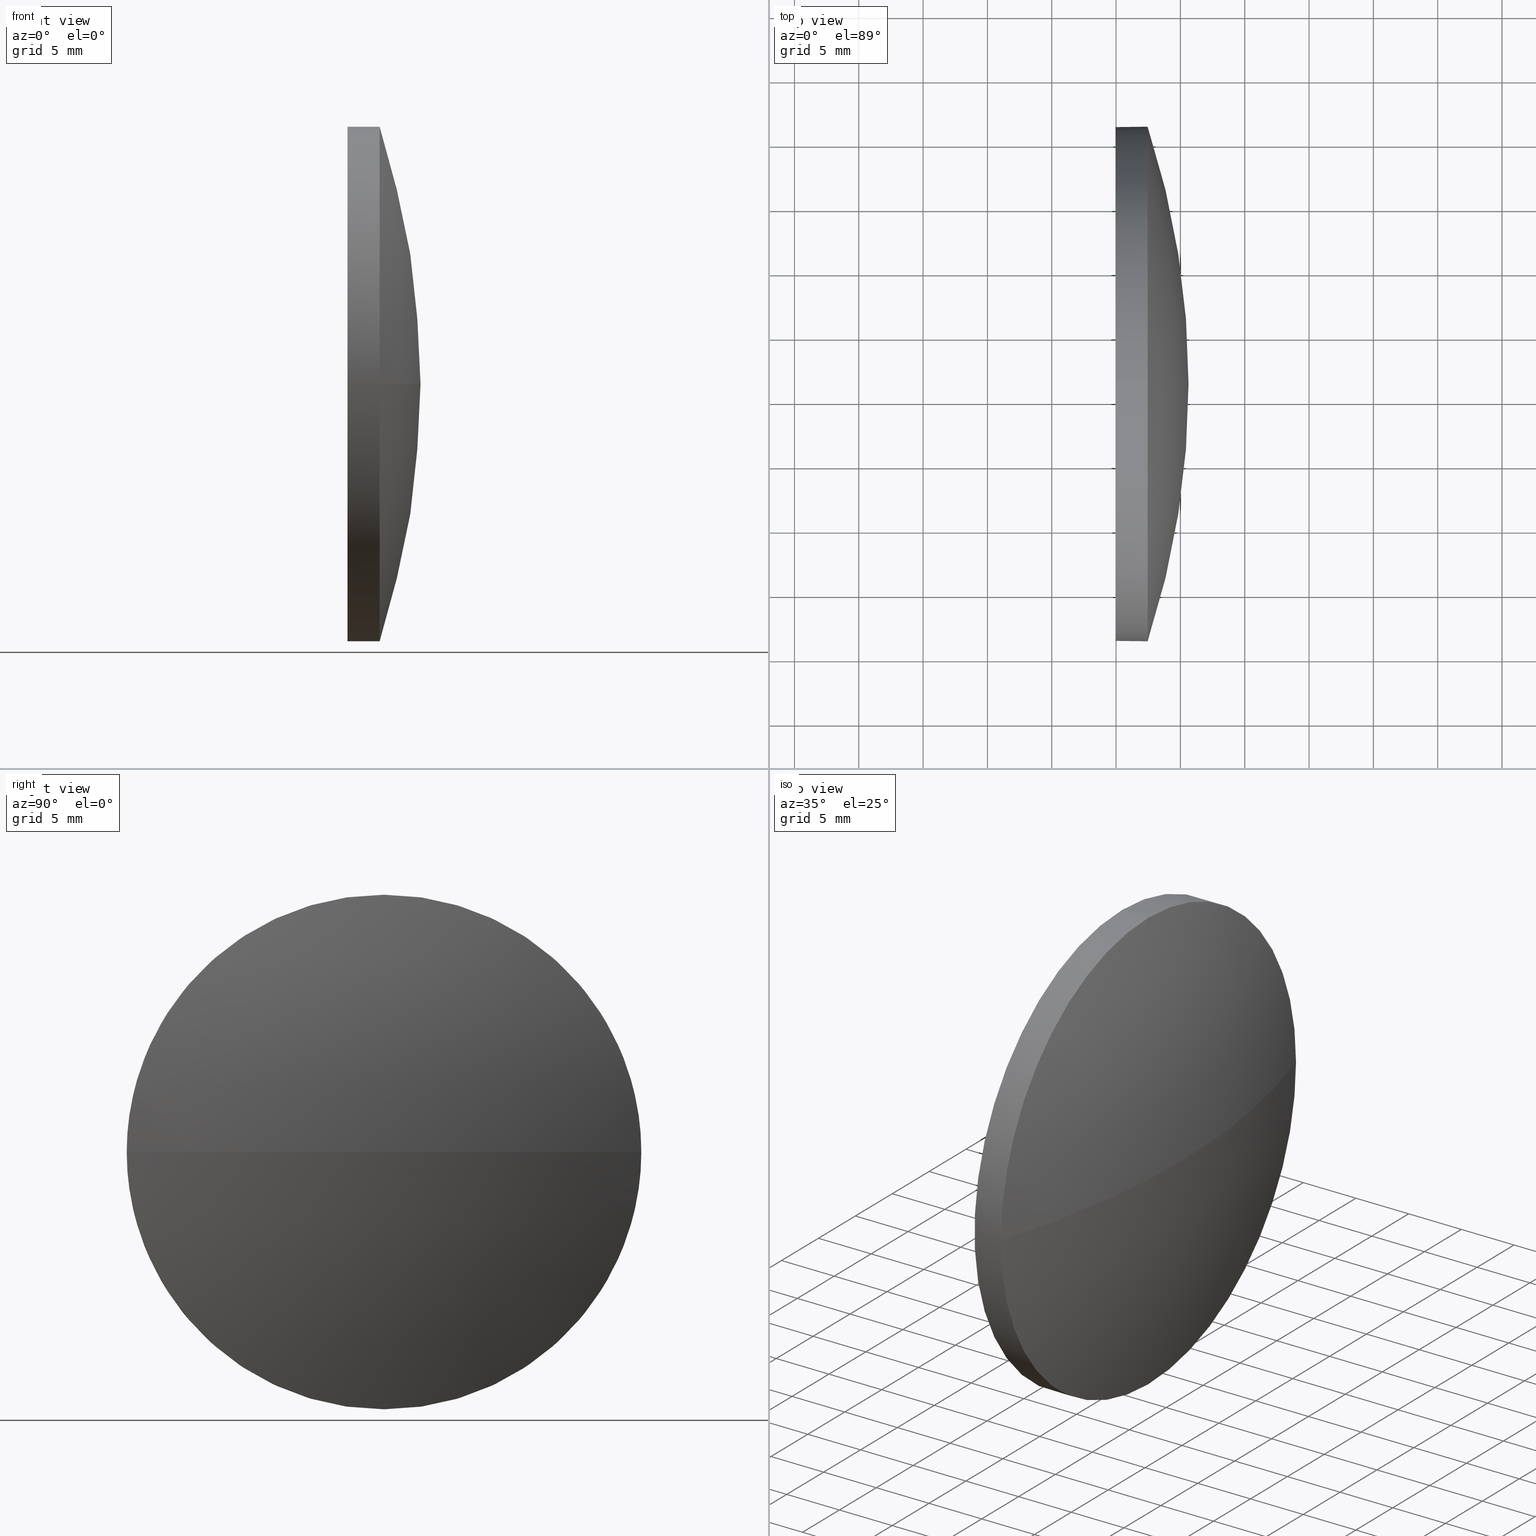
[diagram: canonical four-view strip — front | top / right | iso, engineering-drawing reading convention]
A machine part, canonical four-view strip (front | top / right | iso — engineering-drawing reading convention). The complete STEP part file that produces these views, byte-faithful:
ISO-10303-21;
HEADER;
FILE_DESCRIPTION (( 'STEP AP214' ),
    '1' );
FILE_NAME ('100059.STEP',
    '2019-04-30T02:59:23',
    ( '' ),
    ( '' ),
    'SwSTEP 2.0',
    'SolidWorks 2016',
    '' );
FILE_SCHEMA (( 'AUTOMOTIVE_DESIGN' ));
ENDSEC;

DATA;
#1 = ADVANCED_FACE ( 'NONE', ( #58 ), #98, .T. ) ;
#2 = SURFACE_SIDE_STYLE ('',( #94 ) ) ;
#3 = FACE_OUTER_BOUND ( 'NONE', #111, .T. ) ;
#4 = ADVANCED_FACE ( 'NONE', ( #165 ), #160, .T. ) ;
#5 = EDGE_LOOP ( 'NONE', ( #151, #183, #104, #136 ) ) ;
#6 = AXIS2_PLACEMENT_3D ( 'NONE', #131, #169, #168 ) ;
#7 = STYLED_ITEM ( 'NONE', ( #105 ), #54 ) ;
#8 = SURFACE_STYLE_FILL_AREA ( #166 ) ;
#9 = CIRCLE ( 'NONE', #6, 19.99999999999998900 ) ;
#10 = SURFACE_STYLE_USAGE ( .BOTH. , #112 ) ;
#11 = FILL_AREA_STYLE_COLOUR ( '', #174 ) ;
#12 = PRODUCT_DEFINITION_FORMATION_WITH_SPECIFIED_SOURCE ( '�κ�', '', #51, .NOT_KNOWN. ) ;
#13 = FACE_OUTER_BOUND ( 'NONE', #5, .T. ) ;
#14 = CARTESIAN_POINT ( 'NONE',  ( 569.9530136737812400, 216.2326757458980900, 0.0000000000000000000 ) ) ;
#15 = DIRECTION ( 'NONE',  ( 0.0000000000000000000, 0.0000000000000000000, 1.000000000000000000 ) ) ;
#16 = AXIS2_PLACEMENT_3D ( 'NONE', #123, #141, #66 ) ;
#17 = ORIENTED_EDGE ( 'NONE', *, *, #65, .F. ) ;
#18 = EDGE_CURVE ( 'NONE', #38, #173, #52, .T. ) ;
#19 = CARTESIAN_POINT ( 'NONE',  ( 572.4530136737812400, 216.2326757458980900, 0.0000000000000000000 ) ) ;
#20 = EDGE_CURVE ( 'NONE', #93, #38, #34, .T. ) ;
#21 = CARTESIAN_POINT ( 'NONE',  ( 572.4530136737812400, 216.2326757458980900, 0.0000000000000000000 ) ) ;
#22 =( NAMED_UNIT ( * ) SI_UNIT ( $, .STERADIAN. ) SOLID_ANGLE_UNIT ( ) );
#23 = STYLED_ITEM ( 'NONE', ( #143 ), #30 ) ;
#24 = ORIENTED_EDGE ( 'NONE', *, *, #96, .F. ) ;
#25 = DIRECTION ( 'NONE',  ( 1.000000000000000000, 0.0000000000000000000, 0.0000000000000000000 ) ) ;
#26 = SPHERICAL_SURFACE ( 'NONE', #31, 64.48308176100613300 ) ;
#27 = PRODUCT_CONTEXT ( 'NONE', #57, 'mechanical' ) ;
#28 = VERTEX_POINT ( 'NONE', #124 ) ;
#29 = ADVANCED_FACE ( 'NONE', ( #13 ), #91, .T. ) ;
#30 = MANIFOLD_SOLID_BREP ( '��ת1', #125 ) ;
#31 = AXIS2_PLACEMENT_3D ( 'NONE', #102, #89, #114 ) ;
#32 = CIRCLE ( 'NONE', #126, 64.48308176100611900 ) ;
#33 = AXIS2_PLACEMENT_3D ( 'NONE', #14, #115, #101 ) ;
#34 = CIRCLE ( 'NONE', #50, 19.99999999999998900 ) ;
#35 = DIRECTION ( 'NONE',  ( 0.0000000000000000000, 0.0000000000000000000, 1.000000000000000000 ) ) ;
#36 =( NAMED_UNIT ( * ) SI_UNIT ( $, .STERADIAN. ) SOLID_ANGLE_UNIT ( ) );
#37 = DIRECTION ( 'NONE',  ( -1.000000000000000000, -0.0000000000000000000, -0.0000000000000000000 ) ) ;
#38 = VERTEX_POINT ( 'NONE', #97 ) ;
#39 = DIRECTION ( 'NONE',  ( -1.000000000000000000, -0.0000000000000000000, -0.0000000000000000000 ) ) ;
#40 = CIRCLE ( 'NONE', #77, 64.48308176100614700 ) ;
#41 = CARTESIAN_POINT ( 'NONE',  ( 560.4465163540080500, 216.2326757458980900, -19.99999999999998900 ) ) ;
#42 = CARTESIAN_POINT ( 'NONE',  ( 572.4530136737812400, 216.2326757458980900, 0.0000000000000000000 ) ) ;
#43 = ADVANCED_FACE ( 'NONE', ( #61 ), #68, .F. ) ;
#44 = APPLICATION_CONTEXT ( 'automotive_design' ) ;
#45 = AXIS2_PLACEMENT_3D ( 'NONE', #181, #15, #118 ) ;
#46 = ORIENTED_EDGE ( 'NONE', *, *, #96, .T. ) ;
#47 =( LENGTH_UNIT ( ) NAMED_UNIT ( * ) SI_UNIT ( .MILLI., .METRE. ) );
#48 = EDGE_CURVE ( 'NONE', #28, #38, #40, .T. ) ;
#49 = COLOUR_RGB ( '',1.000000000000000000, 1.000000000000000000, 1.000000000000000000 ) ;
#50 = AXIS2_PLACEMENT_3D ( 'NONE', #19, #56, #35 ) ;
#51 = PRODUCT ( '100059', '100059', '', ( #27 ) ) ;
#52 = CIRCLE ( 'NONE', #99, 19.99999999999998900 ) ;
#53 = PRODUCT_RELATED_PRODUCT_CATEGORY ( 'part', '', ( #51 ) ) ;
#54 = ADVANCED_BREP_SHAPE_REPRESENTATION ( '100059', ( #30, #45 ), #150 ) ;
#55 = LINE ( 'NONE', #41, #161 ) ;
#56 = DIRECTION ( 'NONE',  ( -1.000000000000000000, -0.0000000000000000000, -0.0000000000000000000 ) ) ;
#57 = APPLICATION_CONTEXT ( 'automotive_design' ) ;
#58 = FACE_OUTER_BOUND ( 'NONE', #120, .T. ) ;
#59 = DIRECTION ( 'NONE',  ( 0.0000000000000000000, 0.0000000000000000000, 1.000000000000000000 ) ) ;
#60 =( LENGTH_UNIT ( ) NAMED_UNIT ( * ) SI_UNIT ( .MILLI., .METRE. ) );
#61 = FACE_OUTER_BOUND ( 'NONE', #75, .T. ) ;
#62 = PRESENTATION_LAYER_ASSIGNMENT (  '', '', ( #7 ) ) ;
#63 = VERTEX_POINT ( 'NONE', #154 ) ;
#64 = EDGE_CURVE ( 'NONE', #63, #140, #133, .T. ) ;
#65 = EDGE_CURVE ( 'NONE', #28, #84, #32, .T. ) ;
#66 = DIRECTION ( 'NONE',  ( 0.0000000000000000000, 1.000000000000000000, 0.0000000000000000000 ) ) ;
#67 = DIRECTION ( 'NONE',  ( -1.000000000000000000, -0.0000000000000000000, -0.0000000000000000000 ) ) ;
#68 = PLANE ( 'NONE',  #33 ) ;
#69 = AXIS2_PLACEMENT_3D ( 'NONE', #87, #39, #185 ) ;
#70 = CARTESIAN_POINT ( 'NONE',  ( 572.4530136737812400, 196.2326757458979500, -2.449293598294707300E-015 ) ) ;
#71 = CARTESIAN_POINT ( 'NONE',  ( 511.1499319127751200, 216.2326757458979800, 0.0000000000000000000 ) ) ;
#72 = ORIENTED_EDGE ( 'NONE', *, *, #122, .T. ) ;
#73 = DIRECTION ( 'NONE',  ( -0.0000000000000000000, 0.0000000000000000000, 1.000000000000000000 ) ) ;
#74 = CARTESIAN_POINT ( 'NONE',  ( 560.4465163540080500, 216.2326757458980900, 19.99999999999998900 ) ) ;
#75 = EDGE_LOOP ( 'NONE', ( #81, #86 ) ) ;
#76 = AXIS2_PLACEMENT_3D ( 'NONE', #182, #88, #59 ) ;
#77 = AXIS2_PLACEMENT_3D ( 'NONE', #71, #73, #25 ) ;
#78 = PRODUCT_DEFINITION_SHAPE ( 'NONE', 'NONE',  #95 ) ;
#79 = ORIENTED_EDGE ( 'NONE', *, *, #20, .F. ) ;
#80 = EDGE_CURVE ( 'NONE', #140, #63, #9, .T. ) ;
#81 = ORIENTED_EDGE ( 'NONE', *, *, #80, .T. ) ;
#82 = DIRECTION ( 'NONE',  ( -1.000000000000000000, -0.0000000000000000000, -0.0000000000000000000 ) ) ;
#83 =( LENGTH_UNIT ( ) NAMED_UNIT ( * ) SI_UNIT ( .MILLI., .METRE. ) );
#84 = VERTEX_POINT ( 'NONE', #70 ) ;
#85 = DIRECTION ( 'NONE',  ( 0.0000000000000000000, 0.0000000000000000000, 1.000000000000000000 ) ) ;
#86 = ORIENTED_EDGE ( 'NONE', *, *, #64, .T. ) ;
#87 = CARTESIAN_POINT ( 'NONE',  ( 572.4530136737812400, 216.2326757458980900, 0.0000000000000000000 ) ) ;
#88 = DIRECTION ( 'NONE',  ( -1.000000000000000000, -0.0000000000000000000, -0.0000000000000000000 ) ) ;
#89 = DIRECTION ( 'NONE',  ( -0.0000000000000000000, 0.0000000000000000000, -1.000000000000000000 ) ) ;
#90 = AXIS2_PLACEMENT_3D ( 'NONE', #178, #82, #110 ) ;
#91 = SPHERICAL_SURFACE ( 'NONE', #16, 64.48308176100613300 ) ;
#92 = APPLICATION_PROTOCOL_DEFINITION ( 'draft international standard', 'automotive_design', 1998, #44 ) ;
#93 = VERTEX_POINT ( 'NONE', #130 ) ;
#94 = SURFACE_STYLE_FILL_AREA ( #117 ) ;
#95 = PRODUCT_DEFINITION ( 'δ֪', '', #12, #149 ) ;
#96 = EDGE_CURVE ( 'NONE', #84, #93, #139, .T. ) ;
#97 = CARTESIAN_POINT ( 'NONE',  ( 572.4530136737812400, 236.2326757458980900, 0.0000000000000000000 ) ) ;
#98 = CYLINDRICAL_SURFACE ( 'NONE', #163, 19.99999999999998900 ) ;
#99 = AXIS2_PLACEMENT_3D ( 'NONE', #21, #180, #85 ) ;
#100 = DIRECTION ( 'NONE',  ( -1.000000000000000000, -0.0000000000000000000, -0.0000000000000000000 ) ) ;
#101 = DIRECTION ( 'NONE',  ( 0.0000000000000000000, 0.0000000000000000000, -1.000000000000000000 ) ) ;
#102 = CARTESIAN_POINT ( 'NONE',  ( 511.1499319127751200, 216.2326757458979800, 0.0000000000000000000 ) ) ;
#103 = UNCERTAINTY_MEASURE_WITH_UNIT (LENGTH_MEASURE( 1.000000000000000100E-005 ), #83, 'distance_accuracy_value', 'NONE');
#104 = ORIENTED_EDGE ( 'NONE', *, *, #138, .F. ) ;
#105 = PRESENTATION_STYLE_ASSIGNMENT (( #135 ) ) ;
#106 = PRESENTATION_LAYER_ASSIGNMENT (  '', '', ( #23 ) ) ;
#107 = ORIENTED_EDGE ( 'NONE', *, *, #18, .T. ) ;
#108 = UNCERTAINTY_MEASURE_WITH_UNIT (LENGTH_MEASURE( 1.000000000000000100E-005 ), #47, 'distance_accuracy_value', 'NONE');
#109 = ORIENTED_EDGE ( 'NONE', *, *, #122, .F. ) ;
#110 = DIRECTION ( 'NONE',  ( 0.0000000000000000000, 0.0000000000000000000, 1.000000000000000000 ) ) ;
#111 = EDGE_LOOP ( 'NONE', ( #17, #170, #79, #24 ) ) ;
#112 = SURFACE_SIDE_STYLE ('',( #8 ) ) ;
#113 = DIRECTION ( 'NONE',  ( 0.0000000000000000000, 0.0000000000000000000, 1.000000000000000000 ) ) ;
#114 = DIRECTION ( 'NONE',  ( 0.0000000000000000000, 1.000000000000000000, 0.0000000000000000000 ) ) ;
#115 = DIRECTION ( 'NONE',  ( 1.000000000000000000, 0.0000000000000000000, 0.0000000000000000000 ) ) ;
#116 = ORIENTED_EDGE ( 'NONE', *, *, #64, .F. ) ;
#117 = FILL_AREA_STYLE ('',( #11 ) ) ;
#118 = DIRECTION ( 'NONE',  ( 1.000000000000000000, 0.0000000000000000000, 0.0000000000000000000 ) ) ;
#119 = SHAPE_DEFINITION_REPRESENTATION ( #78, #54 ) ;
#120 = EDGE_LOOP ( 'NONE', ( #186, #175, #46, #72, #116 ) ) ;
#121 = VECTOR ( 'NONE', #100, 1000.000000000000000 ) ;
#122 = EDGE_CURVE ( 'NONE', #93, #140, #148, .T. ) ;
#123 = CARTESIAN_POINT ( 'NONE',  ( 511.1499319127751200, 216.2326757458979800, 0.0000000000000000000 ) ) ;
#124 = CARTESIAN_POINT ( 'NONE',  ( 575.6330136737813100, 216.2326757458979800, 0.0000000000000000000 ) ) ;
#125 = CLOSED_SHELL ( 'NONE', ( #4, #29, #134, #1, #43 ) ) ;
#126 = AXIS2_PLACEMENT_3D ( 'NONE', #129, #156, #159 ) ;
#127 = CIRCLE ( 'NONE', #172, 19.99999999999998900 ) ;
#128 =( GEOMETRIC_REPRESENTATION_CONTEXT ( 3 ) GLOBAL_UNCERTAINTY_ASSIGNED_CONTEXT ( ( #108 ) ) GLOBAL_UNIT_ASSIGNED_CONTEXT ( ( #47, #145, #171 ) ) REPRESENTATION_CONTEXT ( 'NONE', 'WORKASPACE' ) );
#129 = CARTESIAN_POINT ( 'NONE',  ( 511.1499319127751200, 216.2326757458979800, 0.0000000000000000000 ) ) ;
#130 = CARTESIAN_POINT ( 'NONE',  ( 572.4530136737812400, 216.2326757458980900, 19.99999999999998900 ) ) ;
#131 = CARTESIAN_POINT ( 'NONE',  ( 569.9530136737812400, 216.2326757458980900, 0.0000000000000000000 ) ) ;
#132 = CARTESIAN_POINT ( 'NONE',  ( 569.9530136737812400, 216.2326757458980900, 19.99999999999998900 ) ) ;
#133 = CIRCLE ( 'NONE', #76, 19.99999999999998900 ) ;
#134 = ADVANCED_FACE ( 'NONE', ( #3 ), #26, .T. ) ;
#135 = SURFACE_STYLE_USAGE ( .BOTH. , #2 ) ;
#136 = ORIENTED_EDGE ( 'NONE', *, *, #18, .F. ) ;
#137 = EDGE_CURVE ( 'NONE', #173, #63, #55, .T. ) ;
#138 = EDGE_CURVE ( 'NONE', #173, #84, #127, .T. ) ;
#139 = CIRCLE ( 'NONE', #69, 19.99999999999998900 ) ;
#140 = VERTEX_POINT ( 'NONE', #132 ) ;
#141 = DIRECTION ( 'NONE',  ( -0.0000000000000000000, 0.0000000000000000000, -1.000000000000000000 ) ) ;
#142 = MECHANICAL_DESIGN_GEOMETRIC_PRESENTATION_REPRESENTATION (  '', ( #7 ), #128 ) ;
#143 = PRESENTATION_STYLE_ASSIGNMENT (( #10 ) ) ;
#144 = APPLICATION_PROTOCOL_DEFINITION ( 'draft international standard', 'automotive_design', 1998, #57 ) ;
#145 =( NAMED_UNIT ( * ) PLANE_ANGLE_UNIT ( ) SI_UNIT ( $, .RADIAN. ) );
#146 = ORIENTED_EDGE ( 'NONE', *, *, #20, .T. ) ;
#147 = UNCERTAINTY_MEASURE_WITH_UNIT (LENGTH_MEASURE( 1.000000000000000100E-005 ), #60, 'distance_accuracy_value', 'NONE');
#148 = LINE ( 'NONE', #74, #121 ) ;
#149 = PRODUCT_DEFINITION_CONTEXT ( 'detailed design', #44, 'design' ) ;
#150 =( GEOMETRIC_REPRESENTATION_CONTEXT ( 3 ) GLOBAL_UNCERTAINTY_ASSIGNED_CONTEXT ( ( #147 ) ) GLOBAL_UNIT_ASSIGNED_CONTEXT ( ( #60, #167, #22 ) ) REPRESENTATION_CONTEXT ( 'NONE', 'WORKASPACE' ) );
#151 = ORIENTED_EDGE ( 'NONE', *, *, #48, .F. ) ;
#152 =( GEOMETRIC_REPRESENTATION_CONTEXT ( 3 ) GLOBAL_UNCERTAINTY_ASSIGNED_CONTEXT ( ( #103 ) ) GLOBAL_UNIT_ASSIGNED_CONTEXT ( ( #83, #176, #36 ) ) REPRESENTATION_CONTEXT ( 'NONE', 'WORKASPACE' ) );
#153 = ORIENTED_EDGE ( 'NONE', *, *, #137, .T. ) ;
#154 = CARTESIAN_POINT ( 'NONE',  ( 569.9530136737812400, 216.2326757458980900, -19.99999999999998900 ) ) ;
#155 = CARTESIAN_POINT ( 'NONE',  ( 560.4465163540080500, 216.2326757458980900, 0.0000000000000000000 ) ) ;
#156 = DIRECTION ( 'NONE',  ( 0.0000000000000000000, 1.224646799147353200E-016, -1.000000000000000000 ) ) ;
#157 = ORIENTED_EDGE ( 'NONE', *, *, #80, .F. ) ;
#158 = CARTESIAN_POINT ( 'NONE',  ( 572.4530136737812400, 216.2326757458980900, -19.99999999999998900 ) ) ;
#159 = DIRECTION ( 'NONE',  ( 0.0000000000000000000, 1.000000000000000000, 1.224646799147353200E-016 ) ) ;
#160 = CYLINDRICAL_SURFACE ( 'NONE', #90, 19.99999999999998900 ) ;
#161 = VECTOR ( 'NONE', #37, 1000.000000000000000 ) ;
#162 = EDGE_LOOP ( 'NONE', ( #107, #153, #157, #109, #146 ) ) ;
#163 = AXIS2_PLACEMENT_3D ( 'NONE', #155, #67, #177 ) ;
#164 = FILL_AREA_STYLE_COLOUR ( '', #49 ) ;
#165 = FACE_OUTER_BOUND ( 'NONE', #162, .T. ) ;
#166 = FILL_AREA_STYLE ('',( #164 ) ) ;
#167 =( NAMED_UNIT ( * ) PLANE_ANGLE_UNIT ( ) SI_UNIT ( $, .RADIAN. ) );
#168 = DIRECTION ( 'NONE',  ( 0.0000000000000000000, 0.0000000000000000000, 1.000000000000000000 ) ) ;
#169 = DIRECTION ( 'NONE',  ( -1.000000000000000000, -0.0000000000000000000, -0.0000000000000000000 ) ) ;
#170 = ORIENTED_EDGE ( 'NONE', *, *, #48, .T. ) ;
#171 =( NAMED_UNIT ( * ) SI_UNIT ( $, .STERADIAN. ) SOLID_ANGLE_UNIT ( ) );
#172 = AXIS2_PLACEMENT_3D ( 'NONE', #42, #184, #113 ) ;
#173 = VERTEX_POINT ( 'NONE', #158 ) ;
#174 = COLOUR_RGB ( '',1.000000000000000000, 1.000000000000000000, 1.000000000000000000 ) ;
#175 = ORIENTED_EDGE ( 'NONE', *, *, #138, .T. ) ;
#176 =( NAMED_UNIT ( * ) PLANE_ANGLE_UNIT ( ) SI_UNIT ( $, .RADIAN. ) );
#177 = DIRECTION ( 'NONE',  ( 0.0000000000000000000, 0.0000000000000000000, 1.000000000000000000 ) ) ;
#178 = CARTESIAN_POINT ( 'NONE',  ( 560.4465163540080500, 216.2326757458980900, 0.0000000000000000000 ) ) ;
#179 = MECHANICAL_DESIGN_GEOMETRIC_PRESENTATION_REPRESENTATION (  '', ( #23 ), #152 ) ;
#180 = DIRECTION ( 'NONE',  ( -1.000000000000000000, -0.0000000000000000000, -0.0000000000000000000 ) ) ;
#181 = CARTESIAN_POINT ( 'NONE',  ( 0.0000000000000000000, 0.0000000000000000000, 0.0000000000000000000 ) ) ;
#182 = CARTESIAN_POINT ( 'NONE',  ( 569.9530136737812400, 216.2326757458980900, 0.0000000000000000000 ) ) ;
#183 = ORIENTED_EDGE ( 'NONE', *, *, #65, .T. ) ;
#184 = DIRECTION ( 'NONE',  ( -1.000000000000000000, -0.0000000000000000000, -0.0000000000000000000 ) ) ;
#185 = DIRECTION ( 'NONE',  ( 0.0000000000000000000, 0.0000000000000000000, 1.000000000000000000 ) ) ;
#186 = ORIENTED_EDGE ( 'NONE', *, *, #137, .F. ) ;
ENDSEC;
END-ISO-10303-21;
